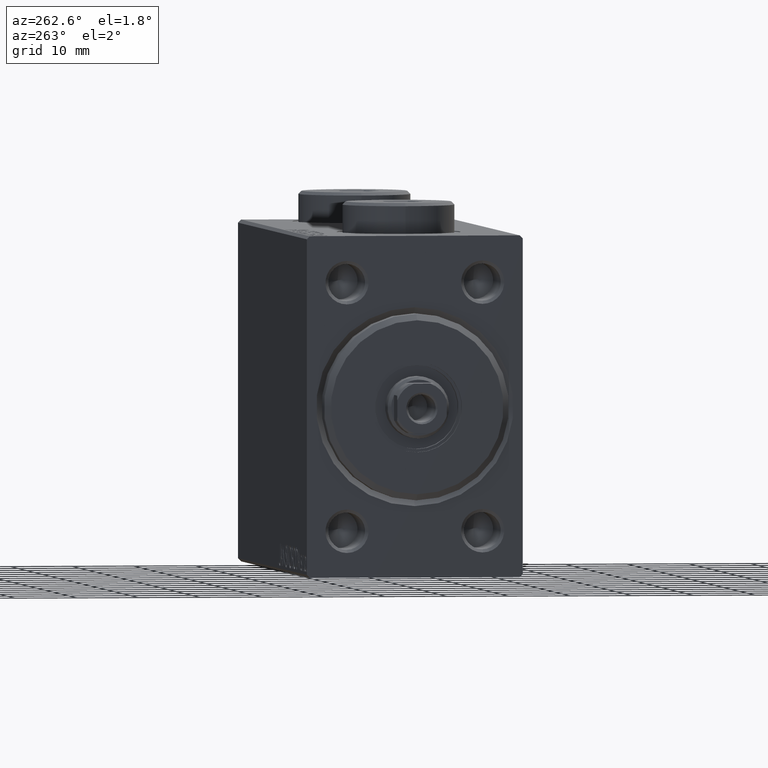
[diagram: clean part render]
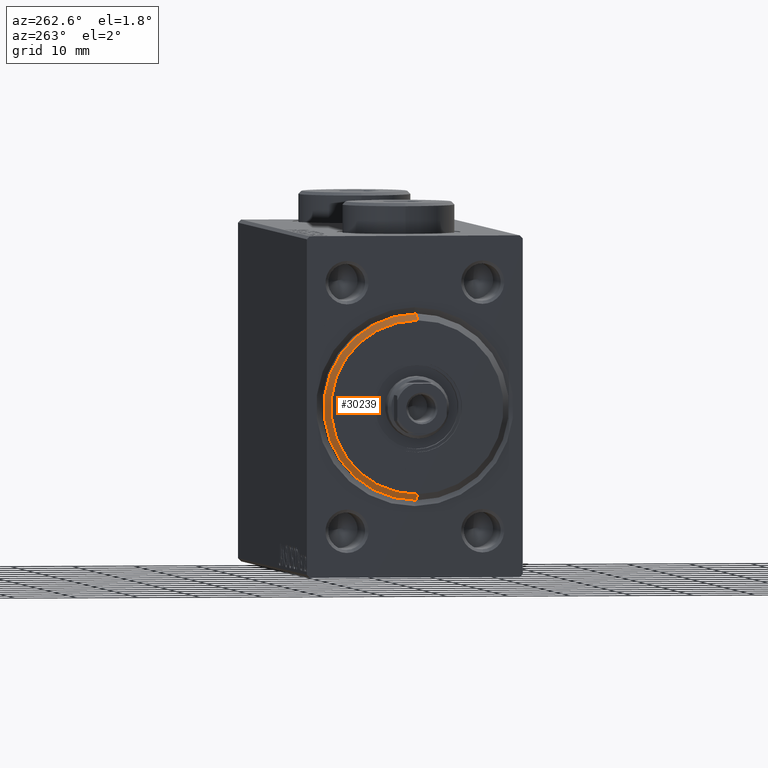
[diagram: same view with one face highlighted and labeled with its STEP entity id]
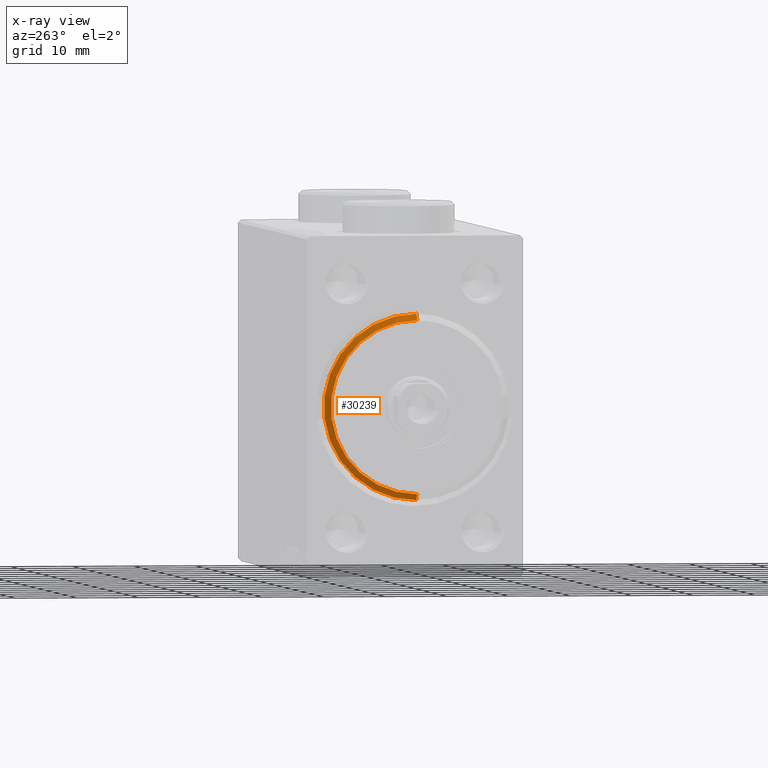
[diagram: x-ray of the same camera — body ghosted, the highlighted face saturated]
A machine part, auxiliary view. The second image highlights one B-rep face of the part: STEP entity #30239.
The next image is the same camera in x-ray: the body ghosted, the highlighted face saturated — about 0% of this face is hidden behind the body in this view.
In plain terms, the highlighted conical surface has half-angle 45 deg.
Its self-contained STEP definition (entity closure, byte-faithful):
#721 = ORIENTED_EDGE ( 'NONE', *, *, #10202, .F. ) ;
#882 = VECTOR ( 'NONE', #36048, 999.9999999999998863 ) ;
#1303 = LINE ( 'NONE', #15384, #882 ) ;
#2426 = ORIENTED_EDGE ( 'NONE', *, *, #33697, .T. ) ;
#3156 = CARTESIAN_POINT ( 'NONE',  ( 3.000000000000000000, 1.775737858763662015E-15, -13.99999999999999645 ) ) ;
#7372 = DIRECTION ( 'NONE',  ( 1.000000000000000000, -0.000000000000000000, 0.000000000000000000 ) ) ;
#9149 = VERTEX_POINT ( 'NONE', #3156 ) ;
#10202 = EDGE_CURVE ( 'NONE', #9149, #39025, #1303, .T. ) ;
#11360 = FACE_OUTER_BOUND ( 'NONE', #28979, .T. ) ;
#14009 = CARTESIAN_POINT ( 'NONE',  ( 1.999999999999995781, 0.000000000000000000, 0.000000000000000000 ) ) ;
#14526 = AXIS2_PLACEMENT_3D ( 'NONE', #31805, #7372, #35451 ) ;
#15384 = CARTESIAN_POINT ( 'NONE',  ( 3.000000000000000000, 1.714505518806294244E-15, -13.99999999999999645 ) ) ;
#18216 = CONICAL_SURFACE ( 'NONE', #43931, 13.99999999999999645, 0.7853981633974473908 ) ;
#20584 = VERTEX_POINT ( 'NONE', #27375 ) ;
#23656 = CARTESIAN_POINT ( 'NONE',  ( 1.999999999999995781, 0.000000000000000000, 15.00000000000000000 ) ) ;
#25430 = DIRECTION ( 'NONE',  ( 0.000000000000000000, 0.000000000000000000, 1.000000000000000000 ) ) ;
#26515 = CARTESIAN_POINT ( 'NONE',  ( 3.000000000000000000, 0.000000000000000000, 13.99999999999999645 ) ) ;
#27375 = CARTESIAN_POINT ( 'NONE',  ( 3.000000000000000000, 0.000000000000000000, 13.99999999999999645 ) ) ;
#27968 = EDGE_CURVE ( 'NONE', #39025, #42285, #41643, .T. ) ;
#28979 = EDGE_LOOP ( 'NONE', ( #721, #35291, #2426, #41765 ) ) ;
#29592 = EDGE_CURVE ( 'NONE', #20584, #9149, #43170, .T. ) ;
#30239 = ADVANCED_FACE ( 'NONE', ( #11360 ), #18216, .T. ) ;
#30825 = DIRECTION ( 'NONE',  ( -1.000000000000000000, 0.000000000000000000, 0.000000000000000000 ) ) ;
#31805 = CARTESIAN_POINT ( 'NONE',  ( 3.000000000000000000, 0.000000000000000000, 0.000000000000000000 ) ) ;
#32882 = VECTOR ( 'NONE', #37057, 999.9999999999998863 ) ;
#33447 = DIRECTION ( 'NONE',  ( -1.000000000000000000, 0.000000000000000000, 0.000000000000000000 ) ) ;
#33697 = EDGE_CURVE ( 'NONE', #20584, #42285, #39837, .T. ) ;
#35048 = AXIS2_PLACEMENT_3D ( 'NONE', #14009, #30825, #45281 ) ;
#35291 = ORIENTED_EDGE ( 'NONE', *, *, #29592, .F. ) ;
#35451 = DIRECTION ( 'NONE',  ( 0.000000000000000000, 0.000000000000000000, -1.000000000000000000 ) ) ;
#35960 = CARTESIAN_POINT ( 'NONE',  ( 3.000000000000000000, 0.000000000000000000, 0.000000000000000000 ) ) ;
#36048 = DIRECTION ( 'NONE',  ( -0.7071067811865482389, 8.659560562354926695E-17, -0.7071067811865469066 ) ) ;
#37057 = DIRECTION ( 'NONE',  ( -0.7071067811865482389, 0.000000000000000000, 0.7071067811865469066 ) ) ;
#39025 = VERTEX_POINT ( 'NONE', #41098 ) ;
#39837 = LINE ( 'NONE', #26515, #32882 ) ;
#41098 = CARTESIAN_POINT ( 'NONE',  ( 1.999999999999995781, 1.836970198721029589E-15, -15.00000000000000000 ) ) ;
#41643 = CIRCLE ( 'NONE', #35048, 15.00000000000000000 ) ;
#41765 = ORIENTED_EDGE ( 'NONE', *, *, #27968, .F. ) ;
#42285 = VERTEX_POINT ( 'NONE', #23656 ) ;
#43170 = CIRCLE ( 'NONE', #14526, 13.99999999999999645 ) ;
#43931 = AXIS2_PLACEMENT_3D ( 'NONE', #35960, #33447, #25430 ) ;
#45281 = DIRECTION ( 'NONE',  ( 0.000000000000000000, 0.000000000000000000, -1.000000000000000000 ) ) ;